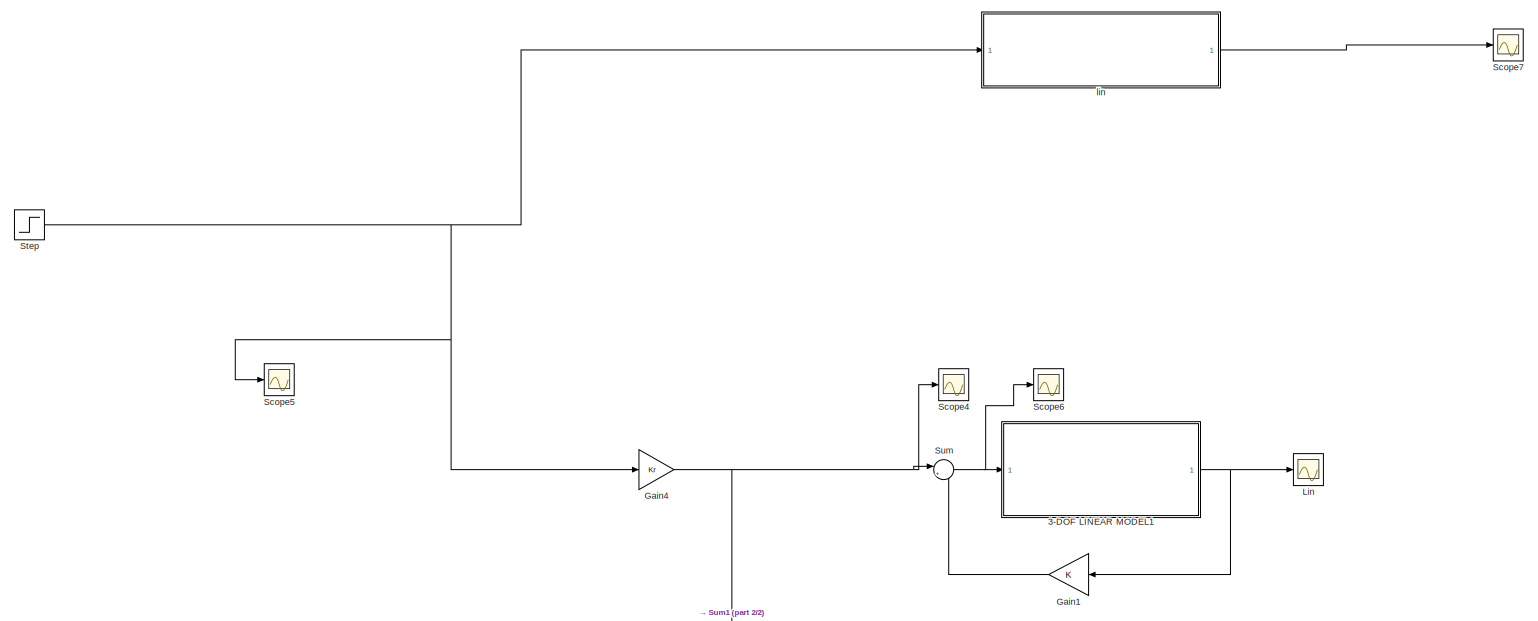
[diagram: root canvas - part 1/2, full width, middle band]
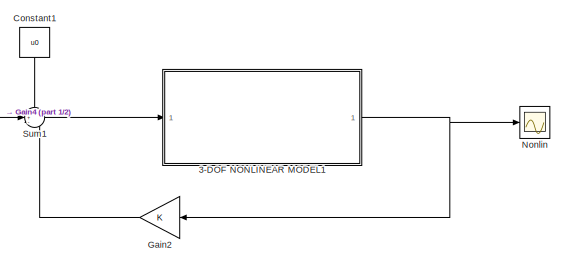
[diagram: root canvas - part 2/2, bottom right region]
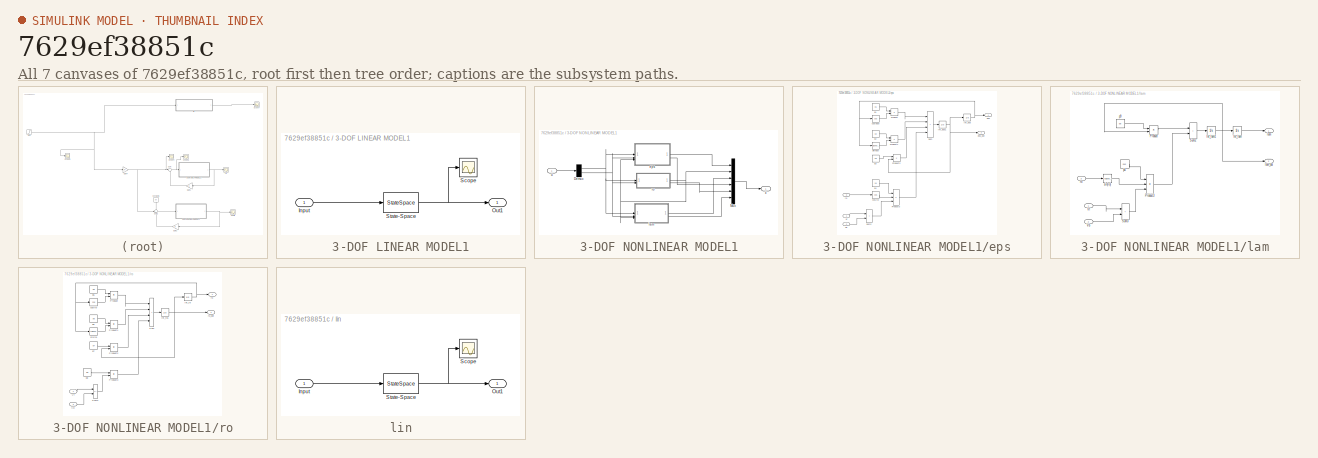
[diagram: thumbnail index - all 7 canvases of the model, root first then tree order]
MODEL slx_7629ef38851c
KIND model
CONFIG AbsTol = auto
CONFIG EnableMultiTasking = off
CONFIG FixedStep = auto
CONFIG MaxStep = auto
CONFIG MinStep = auto
CONFIG RelTol = 1e-3
CONFIG SampleTimeConstraint = Unconstrained
CONFIG SolverName = VariableStepAuto
CONFIG StartTime = 0.0
CONFIG StopTime = 10.0
BLOCK [SubSystem] 3-DOF LINEAR MODEL1
BLOCK [Inport] 3-DOF LINEAR MODEL1/Input
BLOCK [Outport] 3-DOF LINEAR MODEL1/Out1
BLOCK [Scope] 3-DOF LINEAR MODEL1/Scope
  Floating = off
  NumInputPorts = 1
  ScopeSpecificationString = Simulink.scopes.TimeScopeBlockCfg('CurrentConfiguration', extmgr.ConfigurationSet(extmgr.Configuration('Core','General UI',true),extmgr.Configuration('Core','Source UI',true),extmgr.Configuration('Sources','WiredSimulink',true,'DataLoggingVariableName','ScopeData1'),extmgr.Configuration('Visuals','Time Domain',true,'SerializedDisplays',{struct('MinYLimReal','-28.61647','MaxYLimReal','96.43638','YL...<+1535ch>
BLOCK [StateSpace] 3-DOF LINEAR MODEL1/State-Space
  A = A
  B = B
  C = C
  ContinuousStateAttributes = {'eps','ro','lam','epsdot','rodot','lamdot'}
  D = zeros(size(B))
  InitialCondition = x0
BLOCK [SubSystem] 3-DOF NONLINEAR MODEL1
BLOCK [Demux] 3-DOF NONLINEAR MODEL1/Demux
  Outputs = 2
BLOCK [Mux] 3-DOF NONLINEAR MODEL1/Mux
  DisplayOption = bar
  Inputs = 6
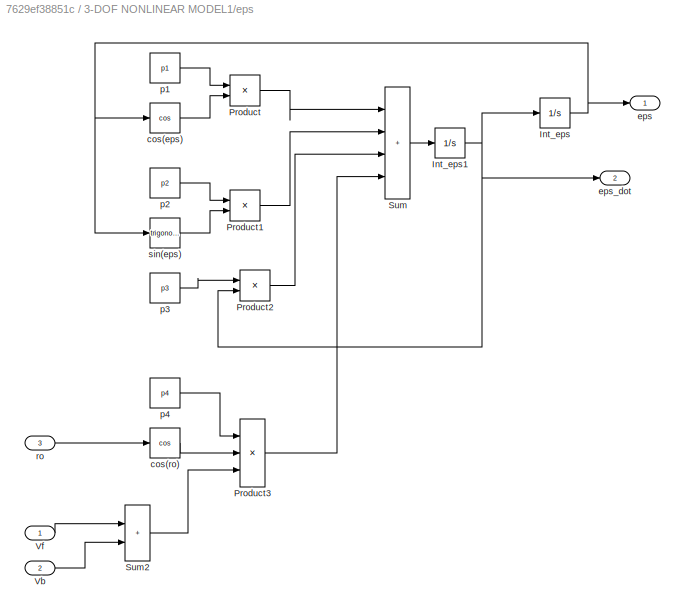
BLOCK [SubSystem] 3-DOF NONLINEAR MODEL1/eps
BLOCK [Integrator] 3-DOF NONLINEAR MODEL1/eps/Int_eps
  ContinuousStateAttributes = 'eps'
  InitialCondition = eps0
BLOCK [Integrator] 3-DOF NONLINEAR MODEL1/eps/Int_eps1
  ContinuousStateAttributes = 'epsdot'
  InitialCondition = eps0dot
BLOCK [Product] 3-DOF NONLINEAR MODEL1/eps/Product
  RndMeth = Zero
BLOCK [Product] 3-DOF NONLINEAR MODEL1/eps/Product1
  RndMeth = Zero
BLOCK [Product] 3-DOF NONLINEAR MODEL1/eps/Product2
  RndMeth = Zero
BLOCK [Product] 3-DOF NONLINEAR MODEL1/eps/Product3
  Inputs = 3
  RndMeth = Zero
BLOCK [Sum] 3-DOF NONLINEAR MODEL1/eps/Sum
  IconShape = rectangular
  Inputs = |++++
BLOCK [Sum] 3-DOF NONLINEAR MODEL1/eps/Sum2
  IconShape = rectangular
  Inputs = |++
BLOCK [Inport] 3-DOF NONLINEAR MODEL1/eps/Vb
  Port = 2
BLOCK [Inport] 3-DOF NONLINEAR MODEL1/eps/Vf
BLOCK [Trigonometry] 3-DOF NONLINEAR MODEL1/eps/cos(eps)
  Operator = cos
BLOCK [Trigonometry] 3-DOF NONLINEAR MODEL1/eps/cos(ro)
  Operator = cos
BLOCK [Outport] 3-DOF NONLINEAR MODEL1/eps/eps
BLOCK [Outport] 3-DOF NONLINEAR MODEL1/eps/eps_dot
  Port = 2
BLOCK [Constant] 3-DOF NONLINEAR MODEL1/eps/p1
  Value = p1
BLOCK [Constant] 3-DOF NONLINEAR MODEL1/eps/p2
  Value = p2
BLOCK [Constant] 3-DOF NONLINEAR MODEL1/eps/p3
  Value = p3
BLOCK [Constant] 3-DOF NONLINEAR MODEL1/eps/p4
  Value = p4
BLOCK [Inport] 3-DOF NONLINEAR MODEL1/eps/ro
  Port = 3
BLOCK [Trigonometry] 3-DOF NONLINEAR MODEL1/eps/sin(eps)
BLOCK [SubSystem] 3-DOF NONLINEAR MODEL1/lam
BLOCK [Integrator] 3-DOF NONLINEAR MODEL1/lam/Int_lam
  ContinuousStateAttributes = 'lam'
  InitialCondition = lam0
BLOCK [Integrator] 3-DOF NONLINEAR MODEL1/lam/Int_lam1
  ContinuousStateAttributes = 'lamdot'
  InitialCondition = lam0dot
BLOCK [Product] 3-DOF NONLINEAR MODEL1/lam/Product
  RndMeth = Zero
BLOCK [Product] 3-DOF NONLINEAR MODEL1/lam/Product3
  Inputs = 3
  RndMeth = Zero
BLOCK [Sum] 3-DOF NONLINEAR MODEL1/lam/Sum2
  IconShape = rectangular
  Inputs = |++
BLOCK [Sum] 3-DOF NONLINEAR MODEL1/lam/Sum3
  IconShape = rectangular
  Inputs = |++
BLOCK [Inport] 3-DOF NONLINEAR MODEL1/lam/Vb
  Port = 2
BLOCK [Inport] 3-DOF NONLINEAR MODEL1/lam/Vf
BLOCK [Outport] 3-DOF NONLINEAR MODEL1/lam/lam
BLOCK [Outport] 3-DOF NONLINEAR MODEL1/lam/lam_dot
  Port = 2
BLOCK [Constant] 3-DOF NONLINEAR MODEL1/lam/p4
  Value = p10
BLOCK [Constant] 3-DOF NONLINEAR MODEL1/lam/p9
  Value = p9
BLOCK [Inport] 3-DOF NONLINEAR MODEL1/lam/ro
  Port = 3
BLOCK [Trigonometry] 3-DOF NONLINEAR MODEL1/lam/sin(ro)
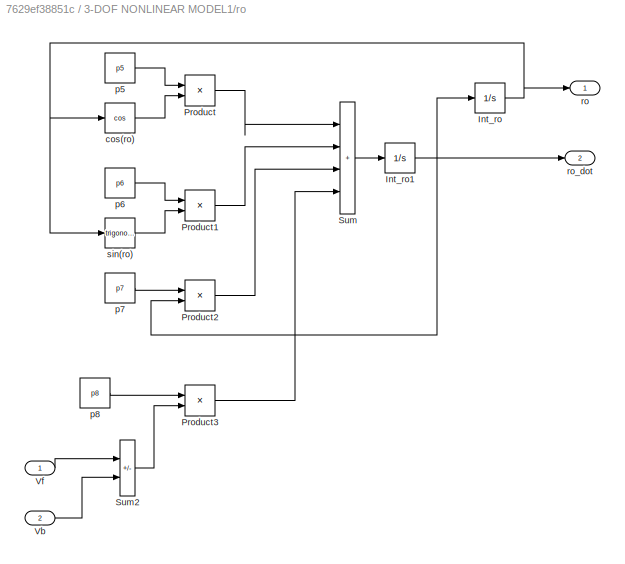
BLOCK [SubSystem] 3-DOF NONLINEAR MODEL1/ro
BLOCK [Integrator] 3-DOF NONLINEAR MODEL1/ro/Int_ro
  ContinuousStateAttributes = 'ro'
  InitialCondition = ro0
BLOCK [Integrator] 3-DOF NONLINEAR MODEL1/ro/Int_ro1
  ContinuousStateAttributes = 'rodot'
  InitialCondition = ro0dot
BLOCK [Product] 3-DOF NONLINEAR MODEL1/ro/Product
  RndMeth = Zero
BLOCK [Product] 3-DOF NONLINEAR MODEL1/ro/Product1
  RndMeth = Zero
BLOCK [Product] 3-DOF NONLINEAR MODEL1/ro/Product2
  RndMeth = Zero
BLOCK [Product] 3-DOF NONLINEAR MODEL1/ro/Product3
  RndMeth = Zero
BLOCK [Sum] 3-DOF NONLINEAR MODEL1/ro/Sum
  IconShape = rectangular
  Inputs = |++++
BLOCK [Sum] 3-DOF NONLINEAR MODEL1/ro/Sum2
  IconShape = rectangular
  Inputs = |+-
BLOCK [Inport] 3-DOF NONLINEAR MODEL1/ro/Vb
  Port = 2
BLOCK [Inport] 3-DOF NONLINEAR MODEL1/ro/Vf
BLOCK [Trigonometry] 3-DOF NONLINEAR MODEL1/ro/cos(ro)
  Operator = cos
BLOCK [Constant] 3-DOF NONLINEAR MODEL1/ro/p5
  Value = p5
BLOCK [Constant] 3-DOF NONLINEAR MODEL1/ro/p6
  Value = p6
BLOCK [Constant] 3-DOF NONLINEAR MODEL1/ro/p7
  Value = p7
BLOCK [Constant] 3-DOF NONLINEAR MODEL1/ro/p8
  Value = p8
BLOCK [Outport] 3-DOF NONLINEAR MODEL1/ro/ro
BLOCK [Outport] 3-DOF NONLINEAR MODEL1/ro/ro_dot
  Port = 2
BLOCK [Trigonometry] 3-DOF NONLINEAR MODEL1/ro/sin(ro)
BLOCK [Inport] 3-DOF NONLINEAR MODEL1/u
BLOCK [Outport] 3-DOF NONLINEAR MODEL1/x
BLOCK [Constant] Constant1
  NameLocation = left
  Value = u0
BLOCK [Gain] Gain1
  Gain = K
  Multiplication = Matrix(K*u)
  NameLocation = top
BLOCK [Gain] Gain2
  Gain = K
  Multiplication = Matrix(K*u)
  NameLocation = top
BLOCK [Gain] Gain4
  Gain = Kr
  Multiplication = Matrix(K*u)
BLOCK [Scope] Lin
  Floating = off
  NumInputPorts = 1
  ScopeSpecificationString = Simulink.scopes.TimeScopeBlockCfg('CurrentConfiguration', extmgr.ConfigurationSet(extmgr.Configuration('Core','General UI',true),extmgr.Configuration('Core','Source UI',true),extmgr.Configuration('Sources','WiredSimulink',true,'DataLoggingVariableName','ScopeData1'),extmgr.Configuration('Visuals','Time Domain',true,'SerializedDisplays',{struct('MinYLimReal','-28.61647','MaxYLimReal','96.43638','YL...<+1739ch>
BLOCK [Scope] Nonlin
  Floating = off
  NumInputPorts = 1
  ScopeSpecificationString = Simulink.scopes.TimeScopeBlockCfg('CurrentConfiguration', extmgr.ConfigurationSet(extmgr.Configuration('Core','General UI',true),extmgr.Configuration('Core','Source UI',true),extmgr.Configuration('Sources','WiredSimulink',true,'DataLoggingVariableName','ScopeData2'),extmgr.Configuration('Visuals','Time Domain',true,'SerializedDisplays',{struct('MinYLimReal','-34.29921','MaxYLimReal','130.53459','Y...<+1788ch>
BLOCK [Scope] Scope4
  Floating = off
  NumInputPorts = 1
  ScopeSpecificationString = Simulink.scopes.TimeScopeBlockCfg('CurrentConfiguration', extmgr.ConfigurationSet(extmgr.Configuration('Core','General UI',true),extmgr.Configuration('Core','Source UI',true),extmgr.Configuration('Sources','WiredSimulink',true,'DataLoggingVariableName','ScopeData3'),extmgr.Configuration('Visuals','Time Domain',true,'SerializedDisplays',{struct('MinYLimReal','1785.0261','MaxYLimReal','1796.13331','...<+1422ch>
BLOCK [Scope] Scope5
  Floating = off
  NumInputPorts = 1
  ScopeSpecificationString = Simulink.scopes.TimeScopeBlockCfg('CurrentConfiguration', extmgr.ConfigurationSet(extmgr.Configuration('Core','General UI',true),extmgr.Configuration('Core','Source UI',true),extmgr.Configuration('Sources','WiredSimulink',true,'DataLoggingVariableName','ScopeData4'),extmgr.Configuration('Visuals','Time Domain',true,'SerializedDisplays',{struct('MinYLimReal','-10.00000','MaxYLimReal','90.00000','YL...<+1409ch>
BLOCK [Scope] Scope6
  Floating = off
  NumInputPorts = 1
  ScopeSpecificationString = Simulink.scopes.TimeScopeBlockCfg('CurrentConfiguration', extmgr.ConfigurationSet(extmgr.Configuration('Core','General UI',true),extmgr.Configuration('Core','Source UI',true),extmgr.Configuration('Sources','WiredSimulink',true,'DataLoggingVariableName','ScopeData5'),extmgr.Configuration('Visuals','Time Domain',true,'SerializedDisplays',{struct('MinYLimReal','-577.02382','MaxYLimReal','2053.64676',...<+1443ch>
BLOCK [Scope] Scope7
  Floating = off
  NumInputPorts = 1
  ScopeSpecificationString = Simulink.scopes.TimeScopeBlockCfg('CurrentConfiguration', extmgr.ConfigurationSet(extmgr.Configuration('Core','General UI',true),extmgr.Configuration('Core','Source UI',true),extmgr.Configuration('Sources','WiredSimulink',true,'DataLoggingVariableName','ScopeData6'),extmgr.Configuration('Visuals','Time Domain',true,'SerializedDisplays',{struct('MinYLimReal','-548.21611','MaxYLimReal','156.03236','...<+1418ch>
BLOCK [Step] Step
  After = reference_value
  SampleTime = 0
  Time = [0 3]
BLOCK [Sum] Sum
  Inputs = |+-
BLOCK [Sum] Sum1
  Inputs = ++-
BLOCK [SubSystem] lin
BLOCK [Inport] lin/Input
BLOCK [Outport] lin/Out1
BLOCK [Scope] lin/Scope
  Floating = off
  NumInputPorts = 1
  ScopeSpecificationString = Simulink.scopes.TimeScopeBlockCfg('CurrentConfiguration', extmgr.ConfigurationSet(extmgr.Configuration('Core','General UI',true),extmgr.Configuration('Core','Source UI',true),extmgr.Configuration('Sources','WiredSimulink',true,'DataLoggingVariableName','ScopeData8'),extmgr.Configuration('Visuals','Time Domain',true,'SerializedDisplays',{struct('MinYLimReal','-19.81396','MaxYLimReal','96.85603','YL...<+1458ch>
BLOCK [StateSpace] lin/State-Space
  A = A
  B = B
  C = eye(size(A))
  D = zeros(size(B))
  InitialCondition = x0
LINE 3-DOF LINEAR MODEL1/Input:1 -> 3-DOF LINEAR MODEL1/State-Space:1
NET 3-DOF LINEAR MODEL1/State-Space:1 -> 3-DOF LINEAR MODEL1/Out1:1, 3-DOF LINEAR MODEL1/Scope:1
NET 3-DOF LINEAR MODEL1:1 -> Gain1:1, Lin:1
NET 3-DOF NONLINEAR MODEL1/Demux:1 -> 3-DOF NONLINEAR MODEL1/eps:1, 3-DOF NONLINEAR MODEL1/lam:1, 3-DOF NONLINEAR MODEL1/ro:1
NET 3-DOF NONLINEAR MODEL1/Demux:2 -> 3-DOF NONLINEAR MODEL1/eps:2, 3-DOF NONLINEAR MODEL1/lam:2, 3-DOF NONLINEAR MODEL1/ro:2
LINE 3-DOF NONLINEAR MODEL1/Mux:1 -> 3-DOF NONLINEAR MODEL1/x:1
NET 3-DOF NONLINEAR MODEL1/eps/Int_eps1:1 -> 3-DOF NONLINEAR MODEL1/eps/Int_eps:1, 3-DOF NONLINEAR MODEL1/eps/Product2:2, 3-DOF NONLINEAR MODEL1/eps/eps_dot:1
NET 3-DOF NONLINEAR MODEL1/eps/Int_eps:1 -> 3-DOF NONLINEAR MODEL1/eps/cos(eps):1, 3-DOF NONLINEAR MODEL1/eps/eps:1, 3-DOF NONLINEAR MODEL1/eps/sin(eps):1
LINE 3-DOF NONLINEAR MODEL1/eps/Product1:1 -> 3-DOF NONLINEAR MODEL1/eps/Sum:2
LINE 3-DOF NONLINEAR MODEL1/eps/Product2:1 -> 3-DOF NONLINEAR MODEL1/eps/Sum:3
LINE 3-DOF NONLINEAR MODEL1/eps/Product3:1 -> 3-DOF NONLINEAR MODEL1/eps/Sum:4
LINE 3-DOF NONLINEAR MODEL1/eps/Product:1 -> 3-DOF NONLINEAR MODEL1/eps/Sum:1
LINE 3-DOF NONLINEAR MODEL1/eps/Sum2:1 -> 3-DOF NONLINEAR MODEL1/eps/Product3:3
LINE 3-DOF NONLINEAR MODEL1/eps/Sum:1 -> 3-DOF NONLINEAR MODEL1/eps/Int_eps1:1
LINE 3-DOF NONLINEAR MODEL1/eps/Vb:1 -> 3-DOF NONLINEAR MODEL1/eps/Sum2:2
LINE 3-DOF NONLINEAR MODEL1/eps/Vf:1 -> 3-DOF NONLINEAR MODEL1/eps/Sum2:1
LINE 3-DOF NONLINEAR MODEL1/eps/cos(eps):1 -> 3-DOF NONLINEAR MODEL1/eps/Product:2
LINE 3-DOF NONLINEAR MODEL1/eps/cos(ro):1 -> 3-DOF NONLINEAR MODEL1/eps/Product3:2
LINE 3-DOF NONLINEAR MODEL1/eps/p1:1 -> 3-DOF NONLINEAR MODEL1/eps/Product:1
LINE 3-DOF NONLINEAR MODEL1/eps/p2:1 -> 3-DOF NONLINEAR MODEL1/eps/Product1:1
LINE 3-DOF NONLINEAR MODEL1/eps/p3:1 -> 3-DOF NONLINEAR MODEL1/eps/Product2:1
LINE 3-DOF NONLINEAR MODEL1/eps/p4:1 -> 3-DOF NONLINEAR MODEL1/eps/Product3:1
LINE 3-DOF NONLINEAR MODEL1/eps/ro:1 -> 3-DOF NONLINEAR MODEL1/eps/cos(ro):1
LINE 3-DOF NONLINEAR MODEL1/eps/sin(eps):1 -> 3-DOF NONLINEAR MODEL1/eps/Product1:2
LINE 3-DOF NONLINEAR MODEL1/eps:1 -> 3-DOF NONLINEAR MODEL1/Mux:1
LINE 3-DOF NONLINEAR MODEL1/eps:2 -> 3-DOF NONLINEAR MODEL1/Mux:4
NET 3-DOF NONLINEAR MODEL1/lam/Int_lam1:1 -> 3-DOF NONLINEAR MODEL1/lam/Int_lam:1, 3-DOF NONLINEAR MODEL1/lam/Product:2, 3-DOF NONLINEAR MODEL1/lam/lam_dot:1
LINE 3-DOF NONLINEAR MODEL1/lam/Int_lam:1 -> 3-DOF NONLINEAR MODEL1/lam/lam:1
LINE 3-DOF NONLINEAR MODEL1/lam/Product3:1 -> 3-DOF NONLINEAR MODEL1/lam/Sum2:2
LINE 3-DOF NONLINEAR MODEL1/lam/Product:1 -> 3-DOF NONLINEAR MODEL1/lam/Sum2:1
LINE 3-DOF NONLINEAR MODEL1/lam/Sum2:1 -> 3-DOF NONLINEAR MODEL1/lam/Int_lam1:1
LINE 3-DOF NONLINEAR MODEL1/lam/Sum3:1 -> 3-DOF NONLINEAR MODEL1/lam/Product3:3
LINE 3-DOF NONLINEAR MODEL1/lam/Vb:1 -> 3-DOF NONLINEAR MODEL1/lam/Sum3:2
LINE 3-DOF NONLINEAR MODEL1/lam/Vf:1 -> 3-DOF NONLINEAR MODEL1/lam/Sum3:1
LINE 3-DOF NONLINEAR MODEL1/lam/p4:1 -> 3-DOF NONLINEAR MODEL1/lam/Product3:1
LINE 3-DOF NONLINEAR MODEL1/lam/p9:1 -> 3-DOF NONLINEAR MODEL1/lam/Product:1
LINE 3-DOF NONLINEAR MODEL1/lam/ro:1 -> 3-DOF NONLINEAR MODEL1/lam/sin(ro):1
LINE 3-DOF NONLINEAR MODEL1/lam/sin(ro):1 -> 3-DOF NONLINEAR MODEL1/lam/Product3:2
LINE 3-DOF NONLINEAR MODEL1/lam:1 -> 3-DOF NONLINEAR MODEL1/Mux:3
LINE 3-DOF NONLINEAR MODEL1/lam:2 -> 3-DOF NONLINEAR MODEL1/Mux:6
NET 3-DOF NONLINEAR MODEL1/ro/Int_ro1:1 -> 3-DOF NONLINEAR MODEL1/ro/Int_ro:1, 3-DOF NONLINEAR MODEL1/ro/Product2:2, 3-DOF NONLINEAR MODEL1/ro/ro_dot:1
NET 3-DOF NONLINEAR MODEL1/ro/Int_ro:1 -> 3-DOF NONLINEAR MODEL1/ro/cos(ro):1, 3-DOF NONLINEAR MODEL1/ro/ro:1, 3-DOF NONLINEAR MODEL1/ro/sin(ro):1
LINE 3-DOF NONLINEAR MODEL1/ro/Product1:1 -> 3-DOF NONLINEAR MODEL1/ro/Sum:2
LINE 3-DOF NONLINEAR MODEL1/ro/Product2:1 -> 3-DOF NONLINEAR MODEL1/ro/Sum:3
LINE 3-DOF NONLINEAR MODEL1/ro/Product3:1 -> 3-DOF NONLINEAR MODEL1/ro/Sum:4
LINE 3-DOF NONLINEAR MODEL1/ro/Product:1 -> 3-DOF NONLINEAR MODEL1/ro/Sum:1
LINE 3-DOF NONLINEAR MODEL1/ro/Sum2:1 -> 3-DOF NONLINEAR MODEL1/ro/Product3:2
LINE 3-DOF NONLINEAR MODEL1/ro/Sum:1 -> 3-DOF NONLINEAR MODEL1/ro/Int_ro1:1
LINE 3-DOF NONLINEAR MODEL1/ro/Vb:1 -> 3-DOF NONLINEAR MODEL1/ro/Sum2:2
LINE 3-DOF NONLINEAR MODEL1/ro/Vf:1 -> 3-DOF NONLINEAR MODEL1/ro/Sum2:1
LINE 3-DOF NONLINEAR MODEL1/ro/cos(ro):1 -> 3-DOF NONLINEAR MODEL1/ro/Product:2
LINE 3-DOF NONLINEAR MODEL1/ro/p5:1 -> 3-DOF NONLINEAR MODEL1/ro/Product:1
LINE 3-DOF NONLINEAR MODEL1/ro/p6:1 -> 3-DOF NONLINEAR MODEL1/ro/Product1:1
LINE 3-DOF NONLINEAR MODEL1/ro/p7:1 -> 3-DOF NONLINEAR MODEL1/ro/Product2:1
LINE 3-DOF NONLINEAR MODEL1/ro/p8:1 -> 3-DOF NONLINEAR MODEL1/ro/Product3:1
LINE 3-DOF NONLINEAR MODEL1/ro/sin(ro):1 -> 3-DOF NONLINEAR MODEL1/ro/Product1:2
NET 3-DOF NONLINEAR MODEL1/ro:1 -> 3-DOF NONLINEAR MODEL1/Mux:2, 3-DOF NONLINEAR MODEL1/eps:3, 3-DOF NONLINEAR MODEL1/lam:3
LINE 3-DOF NONLINEAR MODEL1/ro:2 -> 3-DOF NONLINEAR MODEL1/Mux:5
LINE 3-DOF NONLINEAR MODEL1/u:1 -> 3-DOF NONLINEAR MODEL1/Demux:1
NET 3-DOF NONLINEAR MODEL1:1 -> Gain2:1, Nonlin:1
LINE Constant1:1 -> Sum1:1
LINE Gain1:1 -> Sum:2
LINE Gain2:1 -> Sum1:3
NET Gain4:1 -> Scope4:1, Sum1:2, Sum:1
NET Step:1 -> Gain4:1, Scope5:1, lin:1
LINE Sum1:1 -> 3-DOF NONLINEAR MODEL1:1
NET Sum:1 -> 3-DOF LINEAR MODEL1:1, Scope6:1
LINE lin/Input:1 -> lin/State-Space:1
NET lin/State-Space:1 -> lin/Out1:1, lin/Scope:1
LINE lin:1 -> Scope7:1
note: NET lines group one-source signal fan-out (src -> all destinations, sorted); 1:1 wires keep LINE
